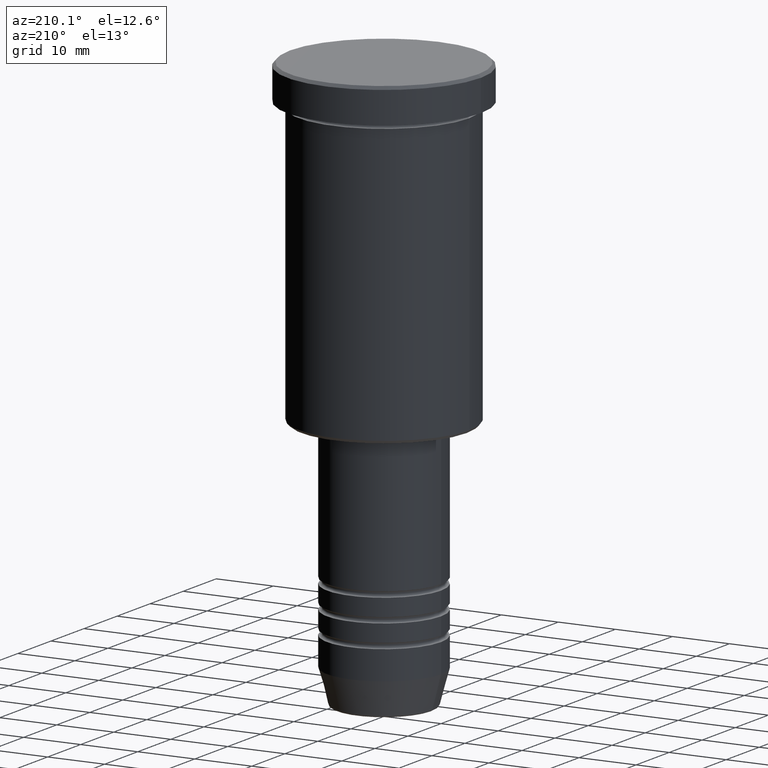
[diagram: clean part render]
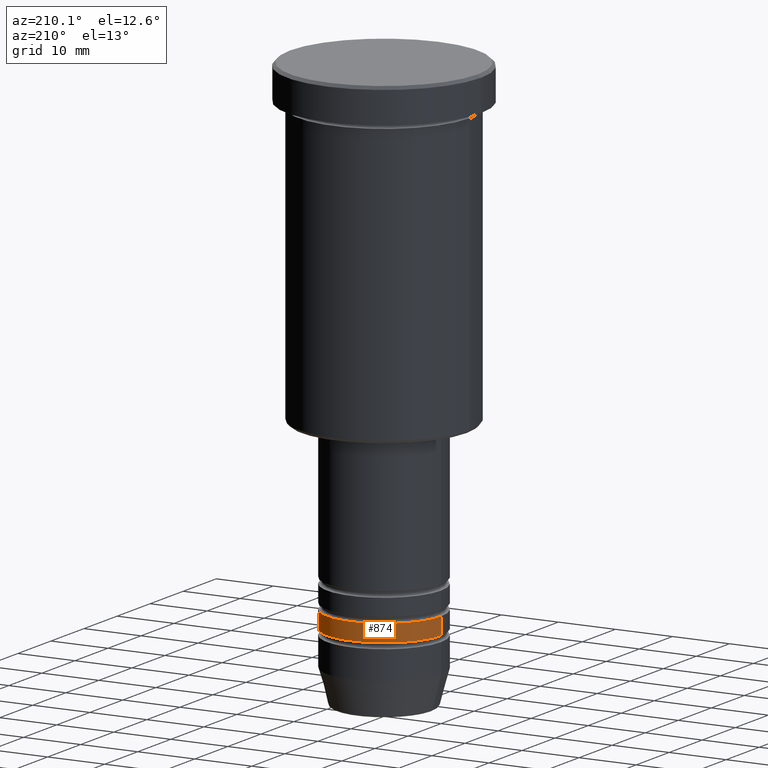
[diagram: same view with one face highlighted and labeled with its STEP entity id]
A machine part, auxiliary view. The second image highlights one B-rep face of the part: STEP entity #874.
In plain terms, the highlighted cylindrical surface (partial cylindrical patch) has radius 10 mm, axis along (-0, -0, 1).
Its self-contained STEP definition (entity closure, byte-faithful):
#19 = ORIENTED_EDGE ( 'NONE', *, *, #816, .F. ) ;
#81 = VECTOR ( 'NONE', #1162, 1000.000000000000000 ) ;
#116 = DIRECTION ( 'NONE',  ( 1.000000000000000000, 0.000000000000000000, 0.000000000000000000 ) ) ;
#128 = CARTESIAN_POINT ( 'NONE',  ( -10.00000000000000178, 1.224646799147353454E-15, -87.99999999999998579 ) ) ;
#170 = LINE ( 'NONE', #642, #1133 ) ;
#275 = CIRCLE ( 'NONE', #336, 10.00000000000000178 ) ;
#278 = CARTESIAN_POINT ( 'NONE',  ( -10.00000000000000000, 1.224646799147353256E-15, -84.99999999999998579 ) ) ;
#324 = EDGE_CURVE ( 'NONE', #995, #498, #716, .T. ) ;
#334 = CIRCLE ( 'NONE', #948, 10.00000000000000000 ) ;
#336 = AXIS2_PLACEMENT_3D ( 'NONE', #828, #1006, #394 ) ;
#365 = VERTEX_POINT ( 'NONE', #1155 ) ;
#394 = DIRECTION ( 'NONE',  ( 1.000000000000000000, 0.000000000000000000, 0.000000000000000000 ) ) ;
#419 = EDGE_CURVE ( 'NONE', #585, #498, #334, .T. ) ;
#476 = FACE_OUTER_BOUND ( 'NONE', #999, .T. ) ;
#498 = VERTEX_POINT ( 'NONE', #278 ) ;
#540 = DIRECTION ( 'NONE',  ( -0.000000000000000000, -0.000000000000000000, 1.000000000000000000 ) ) ;
#585 = VERTEX_POINT ( 'NONE', #588 ) ;
#588 = CARTESIAN_POINT ( 'NONE',  ( 10.00000000000000000, 0.000000000000000000, -84.99999999999998579 ) ) ;
#642 = CARTESIAN_POINT ( 'NONE',  ( 10.00000000000000178, 0.000000000000000000, 0.000000000000000000 ) ) ;
#644 = DIRECTION ( 'NONE',  ( -0.000000000000000000, -0.000000000000000000, 1.000000000000000000 ) ) ;
#664 = DIRECTION ( 'NONE',  ( 1.000000000000000000, 0.000000000000000000, 0.000000000000000000 ) ) ;
#716 = LINE ( 'NONE', #797, #81 ) ;
#724 = CARTESIAN_POINT ( 'NONE',  ( 0.000000000000000000, 0.000000000000000000, -84.99999999999998579 ) ) ;
#735 = CARTESIAN_POINT ( 'NONE',  ( 0.000000000000000000, 0.000000000000000000, 0.000000000000000000 ) ) ;
#741 = CYLINDRICAL_SURFACE ( 'NONE', #990, 10.00000000000000178 ) ;
#797 = CARTESIAN_POINT ( 'NONE',  ( -10.00000000000000178, 1.224646799147353454E-15, 0.000000000000000000 ) ) ;
#816 = EDGE_CURVE ( 'NONE', #365, #585, #170, .T. ) ;
#828 = CARTESIAN_POINT ( 'NONE',  ( 0.000000000000000000, 0.000000000000000000, -87.99999999999998579 ) ) ;
#860 = ORIENTED_EDGE ( 'NONE', *, *, #419, .F. ) ;
#866 = EDGE_CURVE ( 'NONE', #365, #995, #275, .T. ) ;
#874 = ADVANCED_FACE ( 'NONE', ( #476 ), #741, .T. ) ;
#909 = ORIENTED_EDGE ( 'NONE', *, *, #866, .T. ) ;
#948 = AXIS2_PLACEMENT_3D ( 'NONE', #724, #644, #664 ) ;
#973 = ORIENTED_EDGE ( 'NONE', *, *, #324, .T. ) ;
#990 = AXIS2_PLACEMENT_3D ( 'NONE', #735, #1124, #116 ) ;
#995 = VERTEX_POINT ( 'NONE', #128 ) ;
#999 = EDGE_LOOP ( 'NONE', ( #909, #973, #860, #19 ) ) ;
#1006 = DIRECTION ( 'NONE',  ( -0.000000000000000000, -0.000000000000000000, 1.000000000000000000 ) ) ;
#1124 = DIRECTION ( 'NONE',  ( -0.000000000000000000, -0.000000000000000000, 1.000000000000000000 ) ) ;
#1133 = VECTOR ( 'NONE', #540, 1000.000000000000000 ) ;
#1155 = CARTESIAN_POINT ( 'NONE',  ( 10.00000000000000178, 0.000000000000000000, -87.99999999999998579 ) ) ;
#1162 = DIRECTION ( 'NONE',  ( -0.000000000000000000, -0.000000000000000000, 1.000000000000000000 ) ) ;